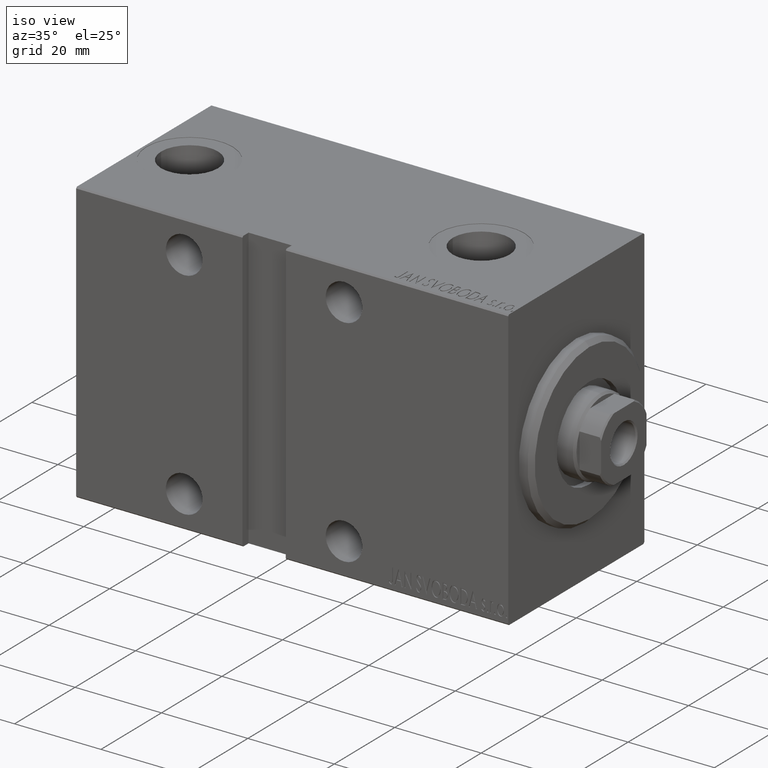
[diagram: clean part render]
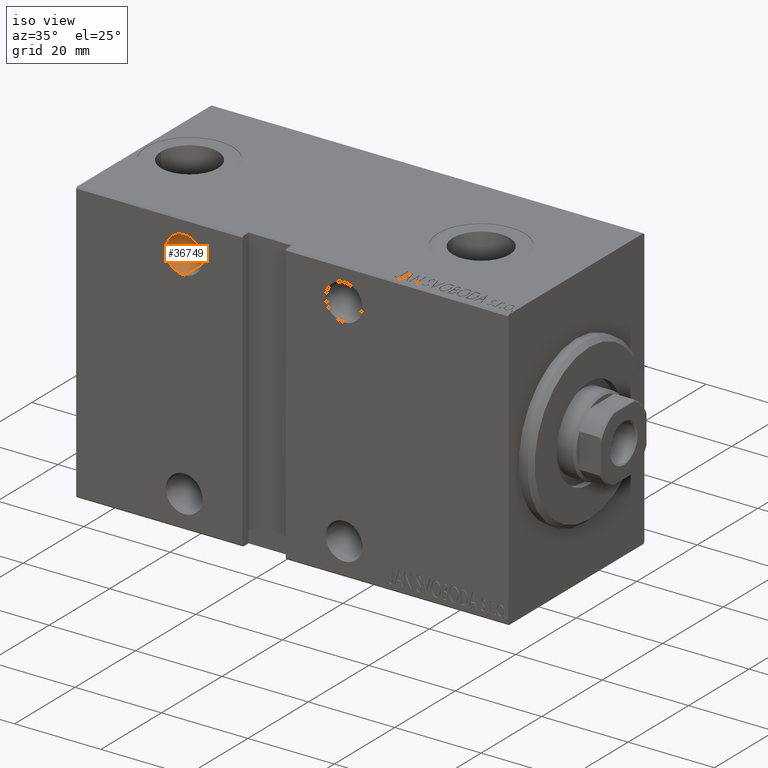
[diagram: same view with one face highlighted and labeled with its STEP entity id]
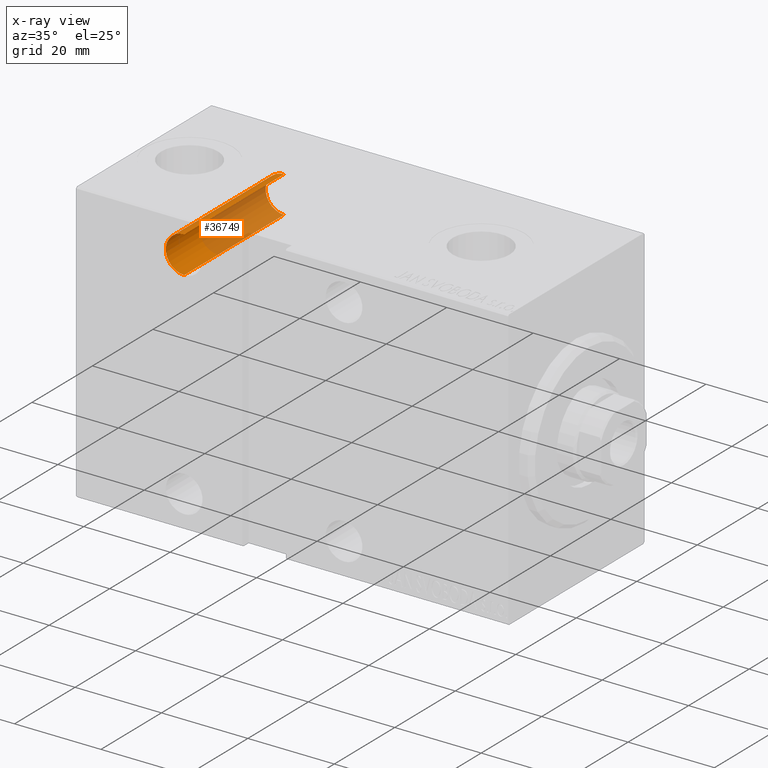
[diagram: x-ray of the same camera — body ghosted, the highlighted face saturated]
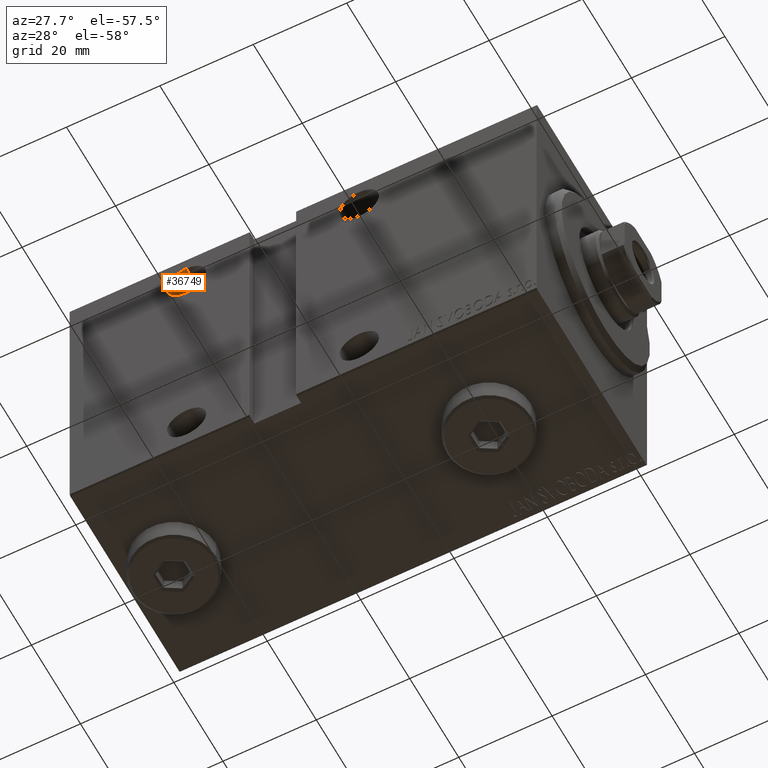
[diagram: same view with one face highlighted and labeled with its STEP entity id]
A machine part, iso view. The second image highlights one B-rep face of the part: STEP entity #36749.
The next image is the same camera in x-ray: the body ghosted, the highlighted face saturated — about 57% of this face is hidden behind the body in this view.
A second angle (auxiliary view) of the same face is appended — the face is thin or edge-on in the first view.
In plain terms, the highlighted cylindrical surface (edge-blend (fillet) strip) has radius 4.25 mm, axis along (0, -1, 0).
Its self-contained STEP definition (entity closure, byte-faithful):
#1871 = FACE_OUTER_BOUND ( 'NONE', #35480, .T. ) ;
#2412 = VECTOR ( 'NONE', #36605, 1000.000000000000000 ) ;
#4789 = CIRCLE ( 'NONE', #37776, 4.250000000000003553 ) ;
#6302 = CARTESIAN_POINT ( 'NONE',  ( 75.00000000000001421, -10.49999999999999467, 20.75000000000000000 ) ) ;
#7950 = CARTESIAN_POINT ( 'NONE',  ( 75.00000000000001421, 22.49999999999999645, 20.75000000000000711 ) ) ;
#8167 = CARTESIAN_POINT ( 'NONE',  ( 75.00000000000001421, -22.50000000000002487, 25.00000000000000355 ) ) ;
#9852 = CARTESIAN_POINT ( 'NONE',  ( 75.00000000000001421, -22.50000000000002487, 20.75000000000000000 ) ) ;
#13086 = ORIENTED_EDGE ( 'NONE', *, *, #21559, .F. ) ;
#13928 = CARTESIAN_POINT ( 'NONE',  ( 75.00000000000001421, -10.49999999999999467, 25.00000000000000355 ) ) ;
#16387 = LINE ( 'NONE', #26280, #2412 ) ;
#16853 = DIRECTION ( 'NONE',  ( -0.000000000000000000, 1.000000000000000000, -0.000000000000000000 ) ) ;
#18916 = AXIS2_PLACEMENT_3D ( 'NONE', #8167, #21867, #29058 ) ;
#20351 = VERTEX_POINT ( 'NONE', #7950 ) ;
#21559 = EDGE_CURVE ( 'NONE', #20351, #32949, #42325, .T. ) ;
#21867 = DIRECTION ( 'NONE',  ( -0.000000000000000000, 1.000000000000000000, 1.261617073437677752E-16 ) ) ;
#25802 = AXIS2_PLACEMENT_3D ( 'NONE', #27306, #29799, #37200 ) ;
#26280 = CARTESIAN_POINT ( 'NONE',  ( 75.00000000000001421, -22.50000000000002487, 29.25000000000000711 ) ) ;
#26357 = CARTESIAN_POINT ( 'NONE',  ( 75.00000000000001421, 22.49999999999999645, 29.25000000000001421 ) ) ;
#26871 = VECTOR ( 'NONE', #37259, 1000.000000000000000 ) ;
#27306 = CARTESIAN_POINT ( 'NONE',  ( 75.00000000000001421, 22.49999999999999645, 25.00000000000001066 ) ) ;
#29058 = DIRECTION ( 'NONE',  ( 0.000000000000000000, 0.000000000000000000, 1.000000000000000000 ) ) ;
#29799 = DIRECTION ( 'NONE',  ( 0.000000000000000000, -1.000000000000000000, -1.067522139062650425E-16 ) ) ;
#29932 = VERTEX_POINT ( 'NONE', #6302 ) ;
#31028 = CARTESIAN_POINT ( 'NONE',  ( 75.00000000000001421, -10.49999999999999467, 29.25000000000000711 ) ) ;
#32949 = VERTEX_POINT ( 'NONE', #26357 ) ;
#33610 = ORIENTED_EDGE ( 'NONE', *, *, #43774, .F. ) ;
#35480 = EDGE_LOOP ( 'NONE', ( #41745, #33610, #40460, #13086 ) ) ;
#36167 = VERTEX_POINT ( 'NONE', #31028 ) ;
#36366 = EDGE_CURVE ( 'NONE', #36167, #32949, #16387, .T. ) ;
#36605 = DIRECTION ( 'NONE',  ( -0.000000000000000000, 1.000000000000000000, 1.261617073437677752E-16 ) ) ;
#36749 = ADVANCED_FACE ( 'NONE', ( #1871 ), #42991, .F. ) ;
#37200 = DIRECTION ( 'NONE',  ( 0.000000000000000000, 0.000000000000000000, -1.000000000000000000 ) ) ;
#37259 = DIRECTION ( 'NONE',  ( -0.000000000000000000, 1.000000000000000000, 1.261617073437677752E-16 ) ) ;
#37776 = AXIS2_PLACEMENT_3D ( 'NONE', #13928, #16853, #44284 ) ;
#39803 = EDGE_CURVE ( 'NONE', #29932, #20351, #40632, .T. ) ;
#40460 = ORIENTED_EDGE ( 'NONE', *, *, #36366, .T. ) ;
#40632 = LINE ( 'NONE', #9852, #26871 ) ;
#41745 = ORIENTED_EDGE ( 'NONE', *, *, #39803, .F. ) ;
#42325 = CIRCLE ( 'NONE', #25802, 4.250000000000003553 ) ;
#42991 = CYLINDRICAL_SURFACE ( 'NONE', #18916, 4.250000000000003553 ) ;
#43774 = EDGE_CURVE ( 'NONE', #36167, #29932, #4789, .T. ) ;
#44284 = DIRECTION ( 'NONE',  ( 0.000000000000000000, 0.000000000000000000, -1.000000000000000000 ) ) ;